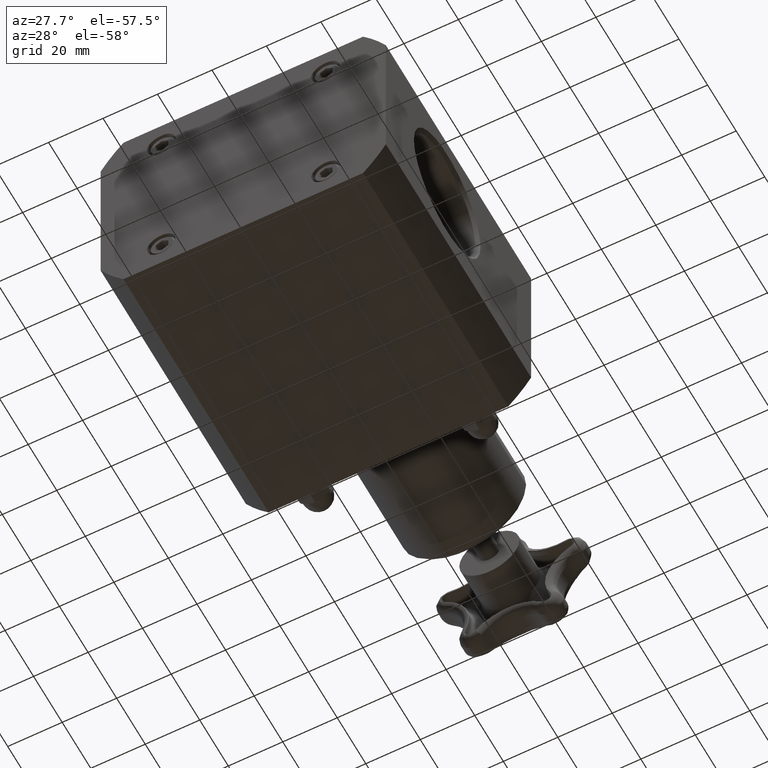
[diagram: clean part render]
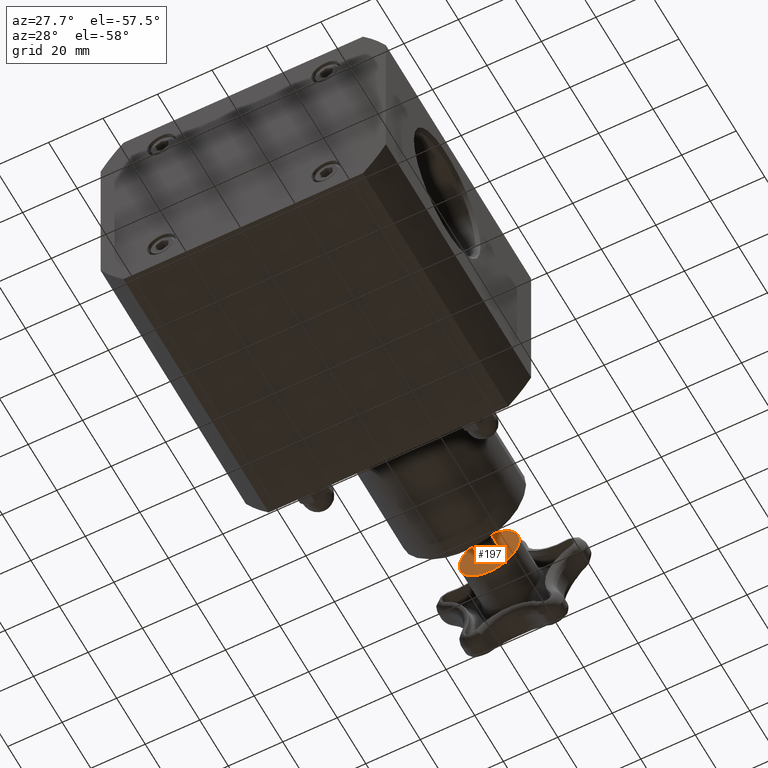
[diagram: same view with one face highlighted and labeled with its STEP entity id]
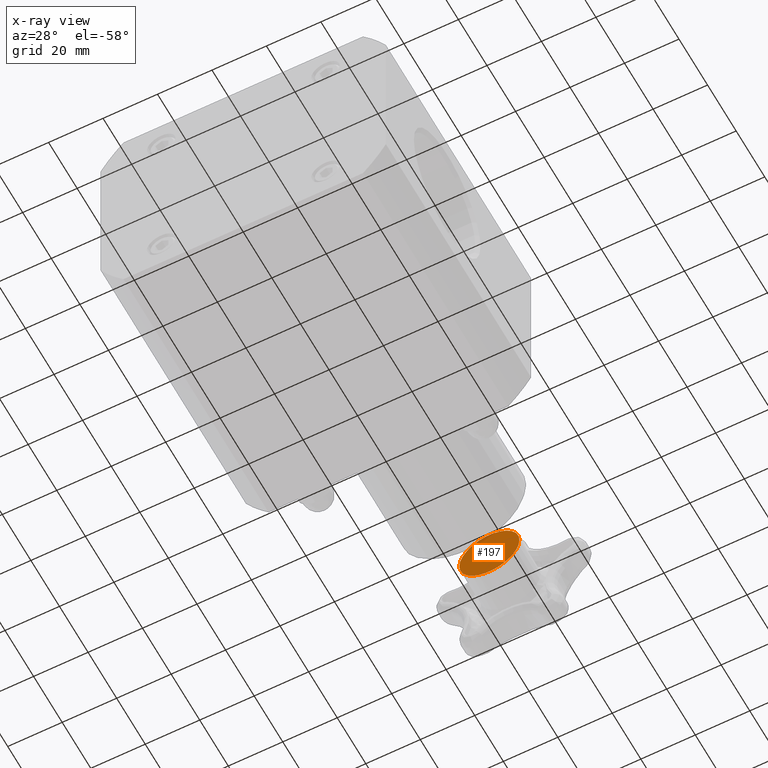
[diagram: x-ray of the same camera — body ghosted, the highlighted face saturated]
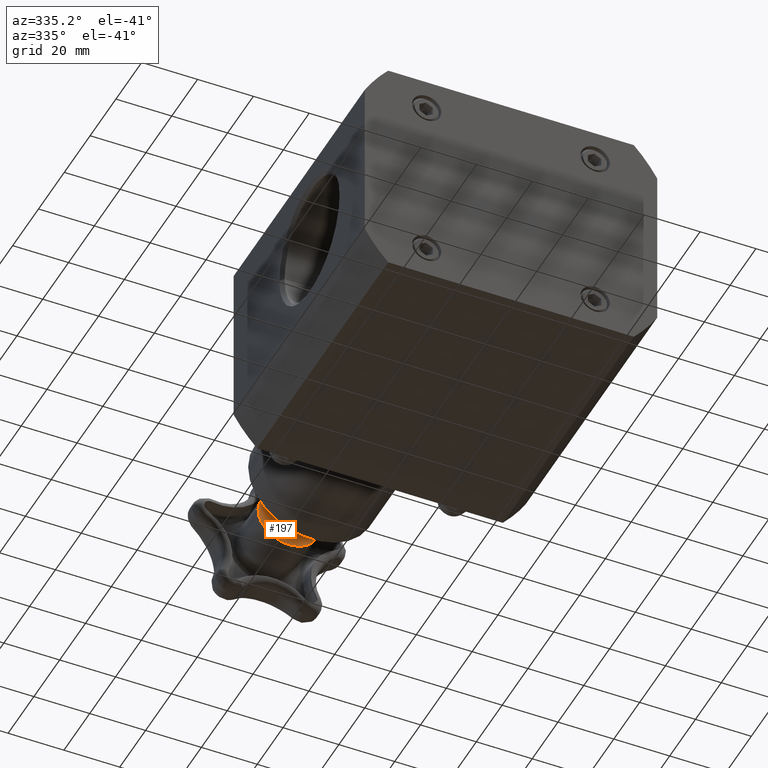
[diagram: same view with one face highlighted and labeled with its STEP entity id]
A machine part, auxiliary view. The second image highlights one B-rep face of the part: STEP entity #197.
The next image is the same camera in x-ray: the body ghosted, the highlighted face saturated — about 4% of this face is hidden behind the body in this view.
A second angle (auxiliary view) of the same face is appended — the face is thin or edge-on in the first view.
In plain terms, the highlighted planar face has unit normal (0, 1, 0).
Its self-contained STEP definition (entity closure, byte-faithful):
#163=CARTESIAN_POINT('',(-0.146500000000000,6.777500000000000,-3.098807E-016));
#164=VERTEX_POINT('',#163);
#165=CARTESIAN_POINT('',(-1.112088E-016,6.777500000000000,-3.278218E-016));
#166=DIRECTION('',(0.0,1.0,0.0));
#167=DIRECTION('',(1.0,0.0,0.0));
#168=AXIS2_PLACEMENT_3D('',#165,#166,#167);
#169=CIRCLE('',#168,0.146500000000000);
#170=EDGE_CURVE('',#164,#164,#169,.T.);
#178=CARTESIAN_POINT('',(-7.810569E-017,6.777500000000000,-3.278218E-016));
#179=DIRECTION('',(0.0,1.0,0.0));
#180=DIRECTION('',(0.0,0.0,1.0));
#181=AXIS2_PLACEMENT_3D('',#178,#179,#180);
#182=PLANE('',#181);
#183=CARTESIAN_POINT('',(0.435000000000000,6.777500000000000,-3.278218E-016));
#184=VERTEX_POINT('',#183);
#185=CARTESIAN_POINT('',(-7.810569E-017,6.777500000000000,-3.278218E-016));
#186=DIRECTION('',(0.0,-1.0,0.0));
#187=DIRECTION('',(1.0,0.0,0.0));
#188=AXIS2_PLACEMENT_3D('',#185,#186,#187);
#189=CIRCLE('',#188,0.435000000000000);
#190=EDGE_CURVE('',#184,#184,#189,.T.);
#191=ORIENTED_EDGE('',*,*,#190,.T.);
#192=EDGE_LOOP('',(#191));
#193=FACE_OUTER_BOUND('',#192,.T.);
#194=ORIENTED_EDGE('',*,*,#170,.T.);
#195=EDGE_LOOP('',(#194));
#196=FACE_BOUND('',#195,.T.);
#197=ADVANCED_FACE('',(#193,#196),#182,.F.);